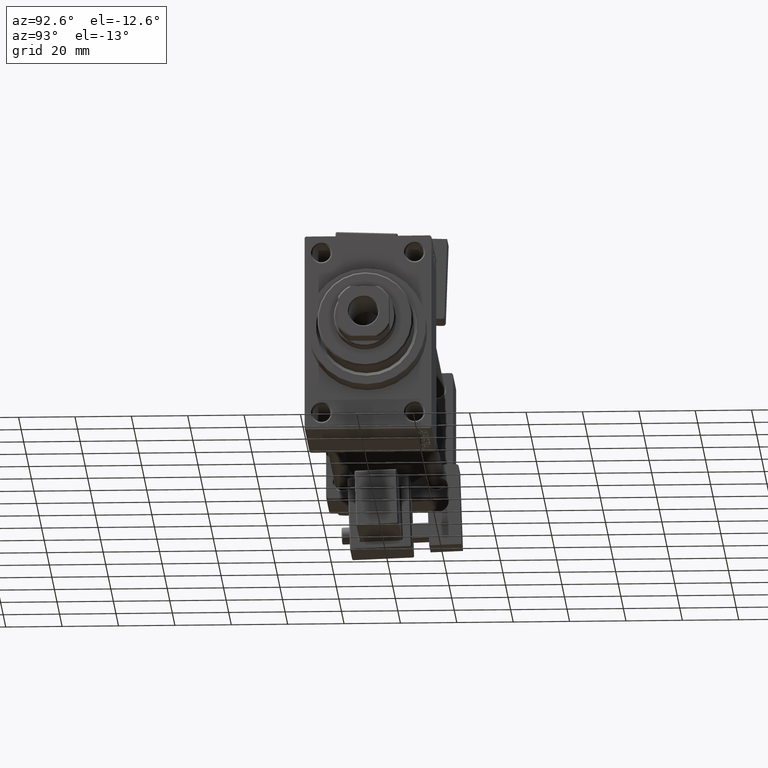
[diagram: clean part render]
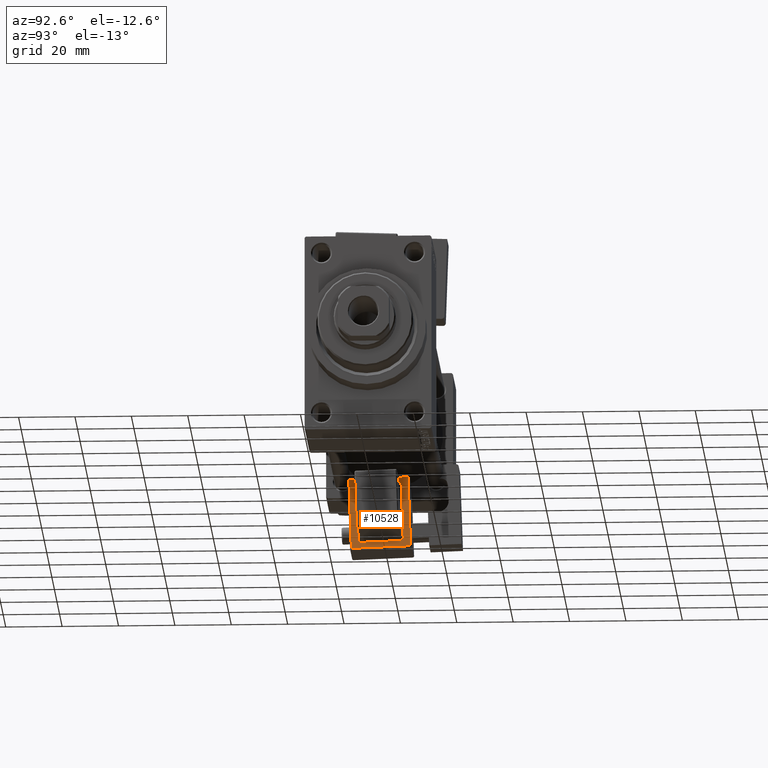
[diagram: same view with one face highlighted and labeled with its STEP entity id]
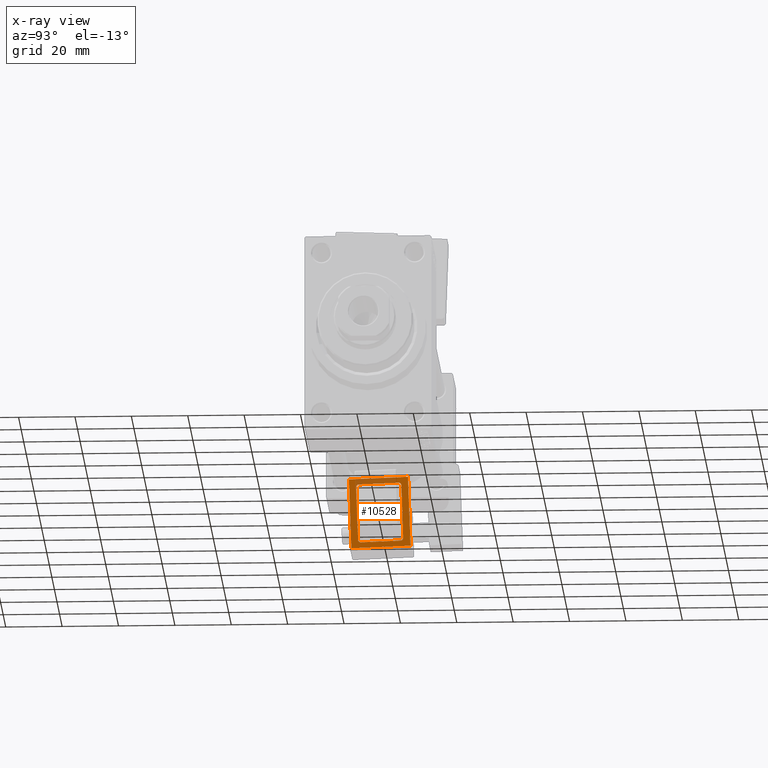
[diagram: x-ray of the same camera — body ghosted, the highlighted face saturated]
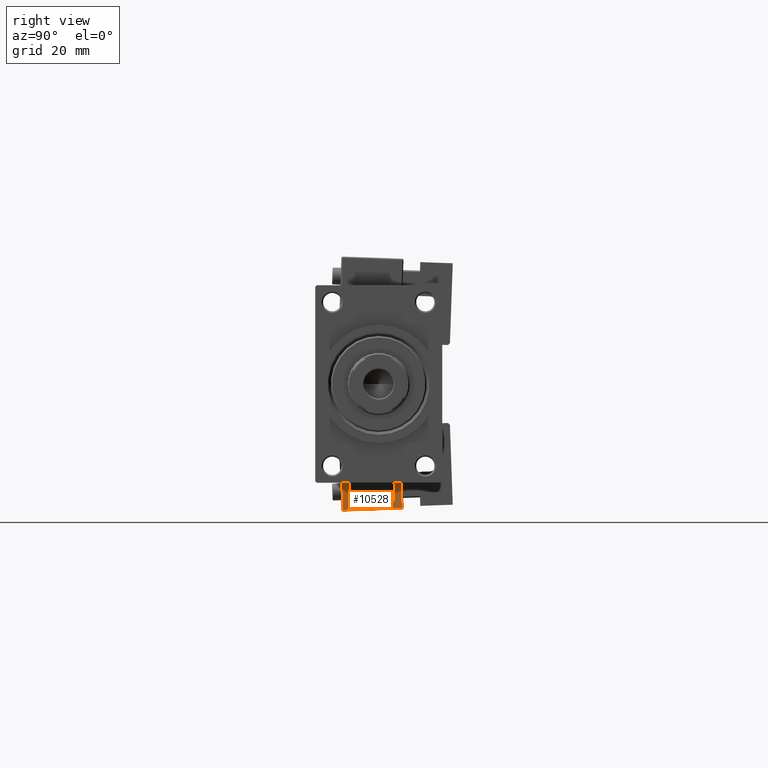
[diagram: same view with one face highlighted and labeled with its STEP entity id]
A machine part, auxiliary view. The second image highlights one B-rep face of the part: STEP entity #10528.
The next image is the same camera in x-ray: the body ghosted, the highlighted face saturated — about 19% of this face is hidden behind the body in this view.
A second angle (right view) of the same face is appended — the face is thin or edge-on in the first view.
In plain terms, the highlighted planar face has unit normal (-1, 0, -0).
Its self-contained STEP definition (entity closure, byte-faithful):
#408 = EDGE_CURVE ( 'NONE', #39053, #15214, #7276, .T. ) ;
#549 = ORIENTED_EDGE ( 'NONE', *, *, #1541, .T. ) ;
#595 = VERTEX_POINT ( 'NONE', #25714 ) ;
#1035 = ORIENTED_EDGE ( 'NONE', *, *, #10688, .T. ) ;
#1541 = EDGE_CURVE ( 'NONE', #4841, #46480, #30945, .T. ) ;
#1609 = VERTEX_POINT ( 'NONE', #24422 ) ;
#1758 = CARTESIAN_POINT ( 'NONE',  ( 8.750000000000003553, -33.25000000000000000, -0.5000000000000003331 ) ) ;
#2387 = AXIS2_PLACEMENT_3D ( 'NONE', #41353, #33339, #33093 ) ;
#3306 = CARTESIAN_POINT ( 'NONE',  ( 8.750000000000003553, -14.75000000000000000, 2.000000000000005329 ) ) ;
#3487 = CARTESIAN_POINT ( 'NONE',  ( 8.750000000000000000, -15.75000000000000000, 22.50000000000000355 ) ) ;
#3961 = ORIENTED_EDGE ( 'NONE', *, *, #408, .T. ) ;
#4003 = DIRECTION ( 'NONE',  ( 0.000000000000000000, 1.000000000000000000, 0.000000000000000000 ) ) ;
#4775 = ORIENTED_EDGE ( 'NONE', *, *, #24723, .F. ) ;
#4841 = VERTEX_POINT ( 'NONE', #16844 ) ;
#5609 = CARTESIAN_POINT ( 'NONE',  ( 8.750000000000000000, -29.75000000000000000, 22.50000000000000000 ) ) ;
#6033 = ORIENTED_EDGE ( 'NONE', *, *, #14566, .T. ) ;
#6428 = VECTOR ( 'NONE', #33304, 1000.000000000000000 ) ;
#7276 = LINE ( 'NONE', #26738, #44378 ) ;
#8002 = CIRCLE ( 'NONE', #43132, 1.000000000000000888 ) ;
#8516 = EDGE_CURVE ( 'NONE', #46480, #39053, #47048, .T. ) ;
#8828 = PLANE ( 'NONE',  #37536 ) ;
#9857 = EDGE_LOOP ( 'NONE', ( #549, #40684, #3961, #32096 ) ) ;
#10187 = CARTESIAN_POINT ( 'NONE',  ( 8.750000000000000000, -12.25000000000000000, 24.99999999999999645 ) ) ;
#10423 = EDGE_CURVE ( 'NONE', #26640, #595, #23918, .T. ) ;
#10528 = ADVANCED_FACE ( 'NONE', ( #15822, #19312 ), #8828, .F. ) ;
#10688 = EDGE_CURVE ( 'NONE', #17092, #33130, #20549, .T. ) ;
#10737 = LINE ( 'NONE', #45959, #40849 ) ;
#12503 = ORIENTED_EDGE ( 'NONE', *, *, #31382, .F. ) ;
#13560 = VECTOR ( 'NONE', #47815, 1000.000000000000000 ) ;
#13927 = DIRECTION ( 'NONE',  ( -1.334402673828313339E-16, 0.000000000000000000, 1.000000000000000000 ) ) ;
#14002 = VERTEX_POINT ( 'NONE', #34890 ) ;
#14029 = ORIENTED_EDGE ( 'NONE', *, *, #35476, .T. ) ;
#14566 = EDGE_CURVE ( 'NONE', #16516, #595, #48581, .T. ) ;
#15214 = VERTEX_POINT ( 'NONE', #42376 ) ;
#15639 = CARTESIAN_POINT ( 'NONE',  ( 8.750000000000003553, -29.75000000000000000, 2.500000000000003109 ) ) ;
#15822 = FACE_OUTER_BOUND ( 'NONE', #9857, .T. ) ;
#16516 = VERTEX_POINT ( 'NONE', #44546 ) ;
#16844 = CARTESIAN_POINT ( 'NONE',  ( 8.750000000000000000, -12.25000000000000000, 24.49999999999999645 ) ) ;
#17092 = VERTEX_POINT ( 'NONE', #5609 ) ;
#18930 = DIRECTION ( 'NONE',  ( 1.543213096464132036E-32, -1.000000000000000000, -1.156482317317871725E-16 ) ) ;
#19312 = FACE_BOUND ( 'NONE', #23860, .T. ) ;
#20549 = LINE ( 'NONE', #36050, #13560 ) ;
#20824 = ORIENTED_EDGE ( 'NONE', *, *, #27414, .T. ) ;
#21347 = CARTESIAN_POINT ( 'NONE',  ( 8.750000000000000000, -30.75000000000000000, 21.50000000000000000 ) ) ;
#23860 = EDGE_LOOP ( 'NONE', ( #4775, #6033, #39960, #14029, #12503, #20824, #39592, #1035 ) ) ;
#23918 = CIRCLE ( 'NONE', #2387, 1.000000000000000000 ) ;
#24270 = CARTESIAN_POINT ( 'NONE',  ( 8.750000000000000000, -33.25000000000000000, 24.49999999999999645 ) ) ;
#24422 = CARTESIAN_POINT ( 'NONE',  ( 8.750000000000003553, -29.75000000000000000, 1.500000000000003331 ) ) ;
#24426 = VECTOR ( 'NONE', #34446, 1000.000000000000000 ) ;
#24723 = EDGE_CURVE ( 'NONE', #16516, #33130, #8002, .T. ) ;
#24782 = DIRECTION ( 'NONE',  ( 1.334402673828313339E-16, -0.000000000000000000, -1.000000000000000000 ) ) ;
#25332 = CIRCLE ( 'NONE', #31703, 1.000000000000000888 ) ;
#25714 = CARTESIAN_POINT ( 'NONE',  ( 8.750000000000003553, -14.75000000000000000, 2.500000000000005773 ) ) ;
#26064 = DIRECTION ( 'NONE',  ( 1.000000000000000000, 0.000000000000000000, 1.334402673828313339E-16 ) ) ;
#26435 = CARTESIAN_POINT ( 'NONE',  ( 8.750000000000003553, -30.25000000000000000, 1.500000000000003331 ) ) ;
#26507 = CIRCLE ( 'NONE', #46584, 1.000000000000000000 ) ;
#26640 = VERTEX_POINT ( 'NONE', #36173 ) ;
#26642 = EDGE_CURVE ( 'NONE', #15214, #4841, #36674, .T. ) ;
#26738 = CARTESIAN_POINT ( 'NONE',  ( 8.750000000000003553, -33.75000000000000000, -0.5000000000000004441 ) ) ;
#27414 = EDGE_CURVE ( 'NONE', #14002, #42529, #10737, .T. ) ;
#30945 = LINE ( 'NONE', #33951, #24426 ) ;
#31377 = DIRECTION ( 'NONE',  ( 0.000000000000000000, 0.000000000000000000, 1.000000000000000000 ) ) ;
#31382 = EDGE_CURVE ( 'NONE', #14002, #1609, #26507, .T. ) ;
#31703 = AXIS2_PLACEMENT_3D ( 'NONE', #48107, #47109, #44363 ) ;
#32096 = ORIENTED_EDGE ( 'NONE', *, *, #26642, .T. ) ;
#32282 = CARTESIAN_POINT ( 'NONE',  ( 8.750000000000000000, -33.25000000000000000, 24.99999999999999645 ) ) ;
#33093 = DIRECTION ( 'NONE',  ( 0.000000000000000000, 0.000000000000000000, 1.000000000000000000 ) ) ;
#33130 = VERTEX_POINT ( 'NONE', #3487 ) ;
#33304 = DIRECTION ( 'NONE',  ( 1.334402673828313339E-16, -0.000000000000000000, -1.000000000000000000 ) ) ;
#33339 = DIRECTION ( 'NONE',  ( 1.000000000000000000, 0.000000000000000000, 1.334402673828313339E-16 ) ) ;
#33951 = CARTESIAN_POINT ( 'NONE',  ( 8.750000000000000000, -33.75000000000000000, 24.49999999999999645 ) ) ;
#34431 = VECTOR ( 'NONE', #13927, 1000.000000000000000 ) ;
#34446 = DIRECTION ( 'NONE',  ( -0.000000000000000000, -1.000000000000000000, -0.000000000000000000 ) ) ;
#34890 = CARTESIAN_POINT ( 'NONE',  ( 8.750000000000003553, -30.75000000000000000, 2.500000000000003109 ) ) ;
#35476 = EDGE_CURVE ( 'NONE', #26640, #1609, #45454, .T. ) ;
#36050 = CARTESIAN_POINT ( 'NONE',  ( 8.750000000000000000, -15.25000000000000000, 22.50000000000000355 ) ) ;
#36173 = CARTESIAN_POINT ( 'NONE',  ( 8.750000000000003553, -15.75000000000000000, 1.500000000000005107 ) ) ;
#36674 = LINE ( 'NONE', #10187, #34431 ) ;
#37536 = AXIS2_PLACEMENT_3D ( 'NONE', #38819, #46322, #46078 ) ;
#38063 = DIRECTION ( 'NONE',  ( 0.000000000000000000, 0.000000000000000000, 1.000000000000000000 ) ) ;
#38819 = CARTESIAN_POINT ( 'NONE',  ( 8.750000000000000000, -33.75000000000000000, 24.99999999999999645 ) ) ;
#39053 = VERTEX_POINT ( 'NONE', #1758 ) ;
#39592 = ORIENTED_EDGE ( 'NONE', *, *, #47192, .F. ) ;
#39960 = ORIENTED_EDGE ( 'NONE', *, *, #10423, .F. ) ;
#40684 = ORIENTED_EDGE ( 'NONE', *, *, #8516, .T. ) ;
#40849 = VECTOR ( 'NONE', #45719, 1000.000000000000000 ) ;
#41028 = VECTOR ( 'NONE', #18930, 1000.000000000000000 ) ;
#41353 = CARTESIAN_POINT ( 'NONE',  ( 8.750000000000003553, -15.75000000000000000, 2.500000000000005773 ) ) ;
#41910 = DIRECTION ( 'NONE',  ( 1.000000000000000000, 0.000000000000000000, 1.334402673828313339E-16 ) ) ;
#42376 = CARTESIAN_POINT ( 'NONE',  ( 8.750000000000003553, -12.25000000000000000, -0.5000000000000003331 ) ) ;
#42529 = VERTEX_POINT ( 'NONE', #21347 ) ;
#43132 = AXIS2_PLACEMENT_3D ( 'NONE', #45084, #26064, #38063 ) ;
#43840 = VECTOR ( 'NONE', #24782, 1000.000000000000000 ) ;
#44363 = DIRECTION ( 'NONE',  ( 0.000000000000000000, 0.000000000000000000, 1.000000000000000000 ) ) ;
#44378 = VECTOR ( 'NONE', #4003, 1000.000000000000000 ) ;
#44546 = CARTESIAN_POINT ( 'NONE',  ( 8.750000000000000000, -14.75000000000000000, 21.50000000000000000 ) ) ;
#45084 = CARTESIAN_POINT ( 'NONE',  ( 8.750000000000000000, -15.75000000000000000, 21.50000000000000000 ) ) ;
#45454 = LINE ( 'NONE', #26435, #41028 ) ;
#45719 = DIRECTION ( 'NONE',  ( -1.334402673828313339E-16, -0.000000000000000000, 1.000000000000000000 ) ) ;
#45959 = CARTESIAN_POINT ( 'NONE',  ( 8.750000000000000000, -30.75000000000000000, 22.00000000000000000 ) ) ;
#46078 = DIRECTION ( 'NONE',  ( -1.334402673828313339E-16, 0.000000000000000000, 1.000000000000000000 ) ) ;
#46322 = DIRECTION ( 'NONE',  ( -1.000000000000000000, 0.000000000000000000, -1.334402673828313339E-16 ) ) ;
#46480 = VERTEX_POINT ( 'NONE', #24270 ) ;
#46584 = AXIS2_PLACEMENT_3D ( 'NONE', #15639, #41910, #31377 ) ;
#47048 = LINE ( 'NONE', #32282, #43840 ) ;
#47109 = DIRECTION ( 'NONE',  ( 1.000000000000000000, 0.000000000000000000, 1.334402673828313339E-16 ) ) ;
#47192 = EDGE_CURVE ( 'NONE', #17092, #42529, #25332, .T. ) ;
#47815 = DIRECTION ( 'NONE',  ( -3.086426192928264073E-32, 1.000000000000000000, 2.312964634635743450E-16 ) ) ;
#48107 = CARTESIAN_POINT ( 'NONE',  ( 8.750000000000000000, -29.75000000000000000, 21.50000000000000000 ) ) ;
#48581 = LINE ( 'NONE', #3306, #6428 ) ;